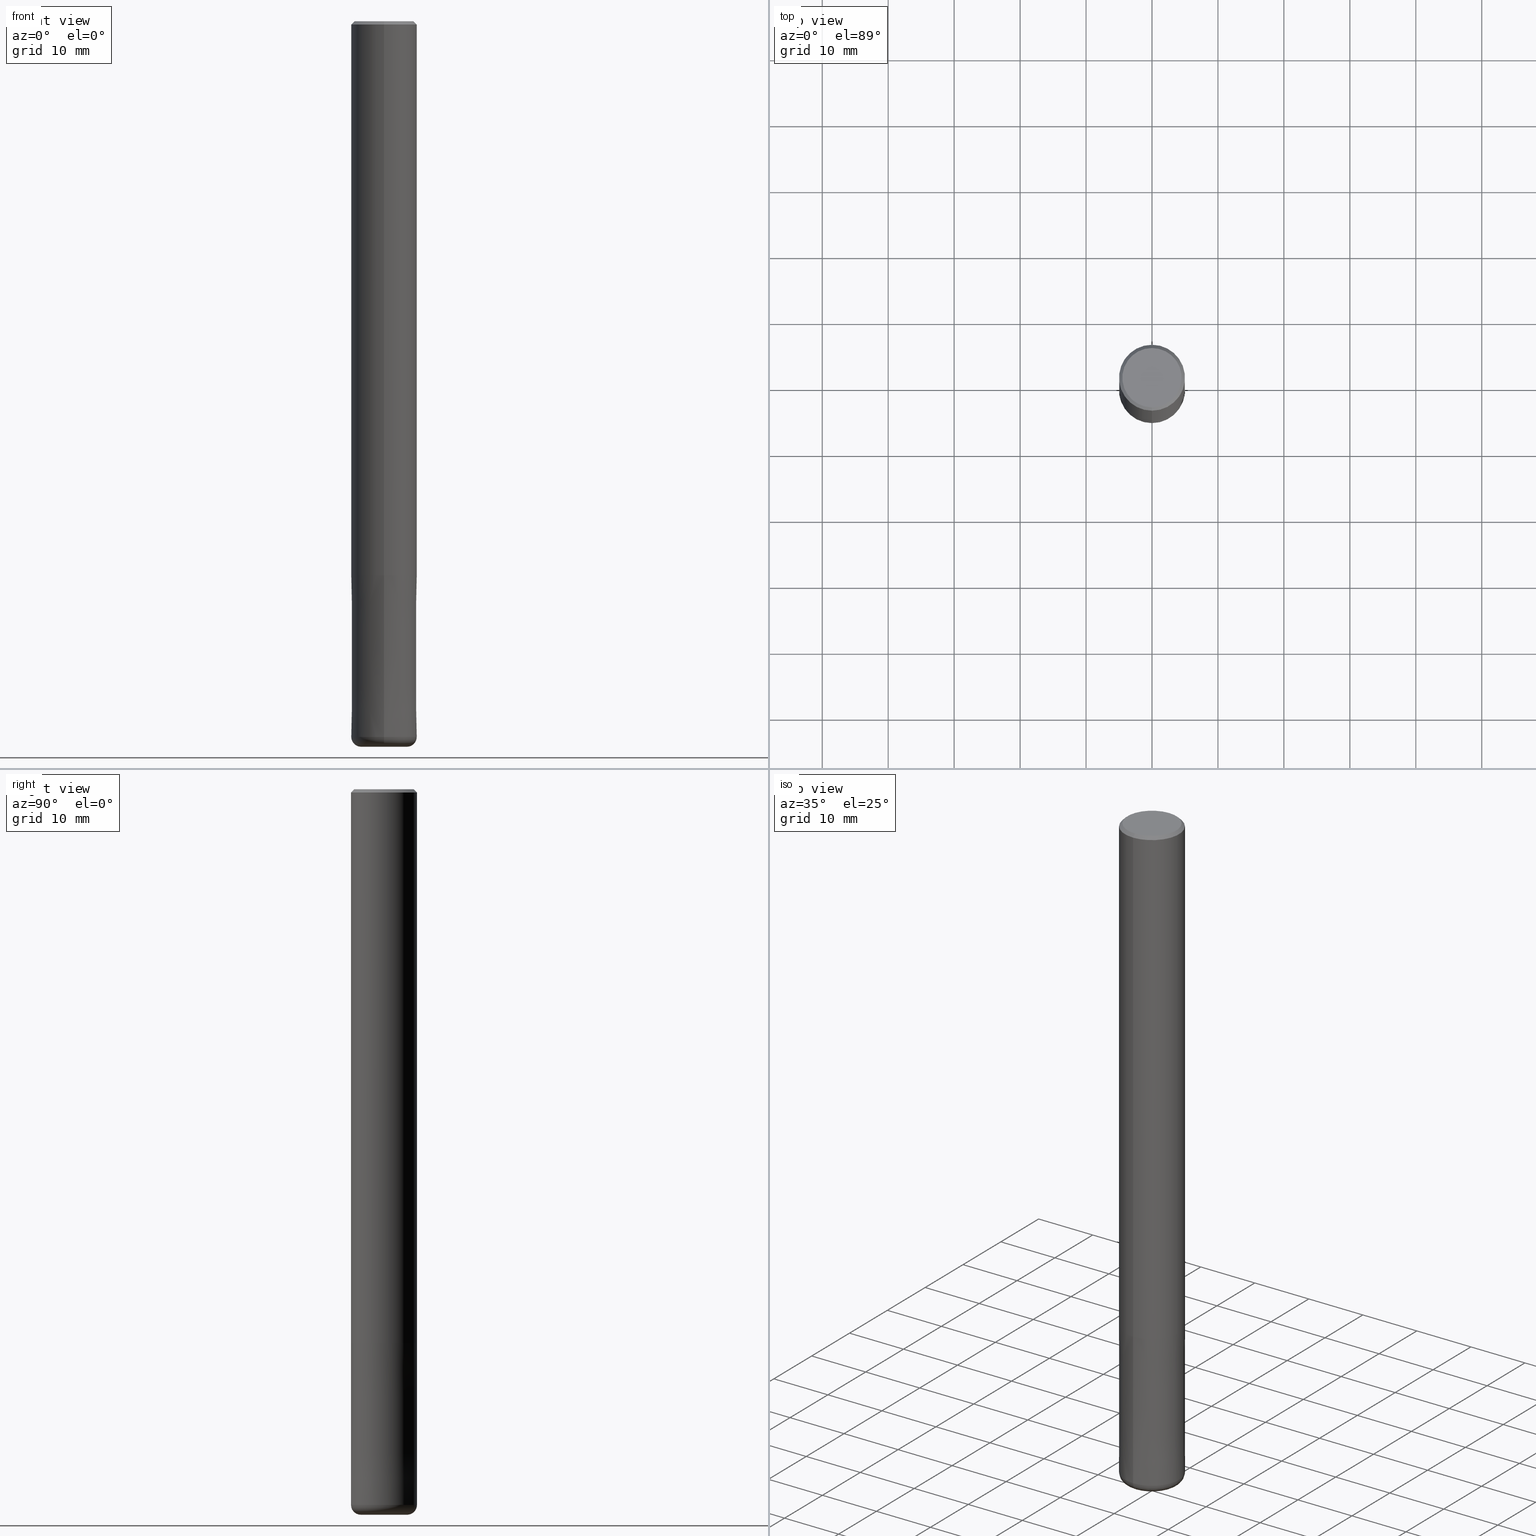
[diagram: canonical four-view strip — front | top / right | iso, engineering-drawing reading convention]
A machine part, canonical four-view strip (front | top / right | iso — engineering-drawing reading convention). The complete STEP part file that produces these views, byte-faithful:
ISO-10303-21;
HEADER;
FILE_DESCRIPTION(('no description'),'unknown implementation level');
FILE_NAME('CNRS4100-15-26-Huellk.stp','  ',('CIMSOURCE GmbH'),('CADClick - KiM GmbH - www.kimweb.de'),'unknown preprocess','ACIS','unknown authorization');
FILE_SCHEMA(('automotive_design'));
ENDSEC;
DATA;
#1=MECHANICAL_DESIGN_GEOMETRIC_PRESENTATION_REPRESENTATION(' ',(#10,#11,#12,#13,#14,#15,#16,#17,#18,#19,#20,#21,#22,#23,#24,#25,#26,#27,#28,#29,#30,#31,#32,#33,#34,#35,#36,#37,#38,#39,#40,#41,#42,#43,#44,#45,#46,#47,#48,#49,#50,#51,#52,#53),#6);
#2=PRODUCT_DEFINITION_CONTEXT('',#54,'design');
#3=APPLICATION_PROTOCOL_DEFINITION('INTERNATIONAL STANDARD','automotive_design',1994,#54);
#4=PRODUCT_CATEGORY_RELATIONSHIP('NONE','NONE',#55,#56);
#5=SHAPE_DEFINITION_REPRESENTATION(#57,#58);
#6= (GEOMETRIC_REPRESENTATION_CONTEXT(3)GLOBAL_UNCERTAINTY_ASSIGNED_CONTEXT((#61))GLOBAL_UNIT_ASSIGNED_CONTEXT((#63,#64,#65))REPRESENTATION_CONTEXT('NONE','WORKSPACE'));
#10=STYLED_ITEM('',(#67),#68);
#11=STYLED_ITEM('',(#69),#70);
#12=STYLED_ITEM('',(#71),#72);
#13=STYLED_ITEM('',(#73),#74);
#14=STYLED_ITEM('',(#75),#76);
#15=STYLED_ITEM('',(#77),#78);
#16=STYLED_ITEM('',(#79),#80);
#17=STYLED_ITEM('',(#81),#82);
#18=STYLED_ITEM('',(#83),#84);
#19=STYLED_ITEM('',(#85),#86);
#20=STYLED_ITEM('',(#87),#88);
#21=STYLED_ITEM('',(#89),#90);
#22=STYLED_ITEM('',(#91),#92);
#23=STYLED_ITEM('',(#93),#94);
#24=STYLED_ITEM('',(#95),#96);
#25=STYLED_ITEM('',(#97),#98);
#26=STYLED_ITEM('',(#99),#100);
#27=STYLED_ITEM('',(#101),#102);
#28=STYLED_ITEM('',(#103),#104);
#29=STYLED_ITEM('',(#105),#106);
#30=STYLED_ITEM('',(#107),#108);
#31=STYLED_ITEM('',(#109),#110);
#32=STYLED_ITEM('',(#111),#112);
#33=STYLED_ITEM('',(#113),#114);
#34=STYLED_ITEM('',(#115),#116);
#35=STYLED_ITEM('',(#117),#118);
#36=STYLED_ITEM('',(#119),#120);
#37=STYLED_ITEM('',(#121),#122);
#38=STYLED_ITEM('',(#123),#124);
#39=STYLED_ITEM('',(#125),#126);
#40=STYLED_ITEM('',(#127),#128);
#41=STYLED_ITEM('',(#129),#130);
#42=STYLED_ITEM('',(#131),#132);
#43=STYLED_ITEM('',(#133),#134);
#44=STYLED_ITEM('',(#135),#136);
#45=STYLED_ITEM('',(#137),#138);
#46=STYLED_ITEM('',(#139),#140);
#47=STYLED_ITEM('',(#141),#142);
#48=STYLED_ITEM('',(#143),#144);
#49=STYLED_ITEM('',(#145),#146);
#50=STYLED_ITEM('',(#147),#148);
#51=STYLED_ITEM('',(#149),#150);
#52=STYLED_ITEM('',(#151),#152);
#53=STYLED_ITEM('',(#153),#154);
#54=APPLICATION_CONTEXT(' ');
#55=PRODUCT_CATEGORY('part','NONE');
#56=PRODUCT_RELATED_PRODUCT_CATEGORY('detail',' ',(#155));
#57=PRODUCT_DEFINITION_SHAPE('NONE','NONE',#156);
#58=ADVANCED_BREP_SHAPE_REPRESENTATION('1',(#82,#157),#6);
#61=UNCERTAINTY_MEASURE_WITH_UNIT(LENGTH_MEASURE(1.0E-006),#63,'','');
#63= (CONVERSION_BASED_UNIT('MILLIMETRE',#160)LENGTH_UNIT()NAMED_UNIT(#163));
#64= (NAMED_UNIT(#165)PLANE_ANGLE_UNIT()SI_UNIT($,.RADIAN.));
#65= (NAMED_UNIT(#165)SOLID_ANGLE_UNIT()SI_UNIT($,.STERADIAN.));
#67=PRESENTATION_STYLE_ASSIGNMENT((#171));
#68=ADVANCED_FACE('',(#172),#173,.T.);
#69=PRESENTATION_STYLE_ASSIGNMENT((#174));
#70=ADVANCED_FACE('',(#175,#176),#177,.T.);
#71=PRESENTATION_STYLE_ASSIGNMENT((#178));
#72=ADVANCED_FACE('',(#179),#180,.T.);
#73=PRESENTATION_STYLE_ASSIGNMENT((#181));
#74=EDGE_CURVE('',#138,#122,#182,.T.);
#75=PRESENTATION_STYLE_ASSIGNMENT((#183));
#76=VERTEX_POINT('',#184);
#77=PRESENTATION_STYLE_ASSIGNMENT((#185));
#78=VERTEX_POINT('',#186);
#79=PRESENTATION_STYLE_ASSIGNMENT((#187));
#80=EDGE_CURVE('',#118,#124,#188,.T.);
#81=PRESENTATION_STYLE_ASSIGNMENT((#189));
#82=MANIFOLD_SOLID_BREP('1',#190);
#83=PRESENTATION_STYLE_ASSIGNMENT((#191));
#84=ADVANCED_FACE('',(#192),#193,.T.);
#85=PRESENTATION_STYLE_ASSIGNMENT((#194));
#86=ADVANCED_FACE('',(#195),#196,.T.);
#87=PRESENTATION_STYLE_ASSIGNMENT((#197));
#88=ADVANCED_FACE('',(#198),#199,.T.);
#89=PRESENTATION_STYLE_ASSIGNMENT((#200));
#90=VERTEX_POINT('',#201);
#91=PRESENTATION_STYLE_ASSIGNMENT((#202));
#92=EDGE_CURVE('',#90,#114,#203,.T.);
#93=PRESENTATION_STYLE_ASSIGNMENT((#204));
#94=ADVANCED_FACE('',(#205),#206,.T.);
#95=PRESENTATION_STYLE_ASSIGNMENT((#207));
#96=EDGE_CURVE('',#122,#114,#208,.T.);
#97=PRESENTATION_STYLE_ASSIGNMENT((#209));
#98=ADVANCED_FACE('',(#210),#211,.T.);
#99=PRESENTATION_STYLE_ASSIGNMENT((#212));
#100=ADVANCED_FACE('',(#213),#214,.T.);
#101=PRESENTATION_STYLE_ASSIGNMENT((#215));
#102=EDGE_CURVE('',#122,#124,#216,.T.);
#103=PRESENTATION_STYLE_ASSIGNMENT((#217));
#104=ADVANCED_FACE('',(#218),#219,.T.);
#105=PRESENTATION_STYLE_ASSIGNMENT((#220));
#106=VERTEX_POINT('',#221);
#107=PRESENTATION_STYLE_ASSIGNMENT((#222));
#108=EDGE_CURVE('',#114,#90,#223,.T.);
#109=PRESENTATION_STYLE_ASSIGNMENT((#224));
#110=EDGE_CURVE('',#106,#146,#225,.T.);
#111=PRESENTATION_STYLE_ASSIGNMENT((#226));
#112=EDGE_CURVE('',#118,#138,#227,.T.);
#113=PRESENTATION_STYLE_ASSIGNMENT((#228));
#114=VERTEX_POINT('',#229);
#115=PRESENTATION_STYLE_ASSIGNMENT((#230));
#116=EDGE_CURVE('',#146,#120,#231,.T.);
#117=PRESENTATION_STYLE_ASSIGNMENT((#232));
#118=VERTEX_POINT('',#233);
#119=PRESENTATION_STYLE_ASSIGNMENT((#234));
#120=VERTEX_POINT('',#235);
#121=PRESENTATION_STYLE_ASSIGNMENT((#236));
#122=VERTEX_POINT('',#237);
#123=PRESENTATION_STYLE_ASSIGNMENT((#238));
#124=VERTEX_POINT('',#239);
#125=PRESENTATION_STYLE_ASSIGNMENT((#240));
#126=EDGE_CURVE('',#78,#106,#241,.T.);
#127=PRESENTATION_STYLE_ASSIGNMENT((#242));
#128=EDGE_CURVE('',#140,#76,#243,.T.);
#129=PRESENTATION_STYLE_ASSIGNMENT((#244));
#130=EDGE_CURVE('',#122,#138,#245,.T.);
#131=PRESENTATION_STYLE_ASSIGNMENT((#246));
#132=EDGE_CURVE('',#120,#140,#247,.T.);
#133=PRESENTATION_STYLE_ASSIGNMENT((#248));
#134=EDGE_CURVE('',#106,#78,#249,.T.);
#135=PRESENTATION_STYLE_ASSIGNMENT((#250));
#136=EDGE_CURVE('',#76,#146,#251,.T.);
#137=PRESENTATION_STYLE_ASSIGNMENT((#252));
#138=VERTEX_POINT('',#253);
#139=PRESENTATION_STYLE_ASSIGNMENT((#254));
#140=VERTEX_POINT('',#255);
#141=PRESENTATION_STYLE_ASSIGNMENT((#256));
#142=EDGE_CURVE('',#146,#76,#257,.T.);
#143=PRESENTATION_STYLE_ASSIGNMENT((#258));
#144=ADVANCED_FACE('',(#259),#260,.T.);
#145=PRESENTATION_STYLE_ASSIGNMENT((#261));
#146=VERTEX_POINT('',#262);
#147=PRESENTATION_STYLE_ASSIGNMENT((#263));
#148=EDGE_CURVE('',#140,#120,#264,.T.);
#149=PRESENTATION_STYLE_ASSIGNMENT((#265));
#150=EDGE_CURVE('',#124,#118,#266,.T.);
#151=PRESENTATION_STYLE_ASSIGNMENT((#267));
#152=EDGE_CURVE('',#76,#78,#268,.T.);
#153=PRESENTATION_STYLE_ASSIGNMENT((#269));
#154=EDGE_CURVE('',#90,#138,#270,.T.);
#155=PRODUCT('1','1','PART-1-DESC',(#271));
#156=PRODUCT_DEFINITION('NONE','NONE',#272,#2);
#157=AXIS2_PLACEMENT_3D('',#273,#274,#275);
#160=LENGTH_MEASURE_WITH_UNIT(LENGTH_MEASURE(1.0),#276);
#163=DIMENSIONAL_EXPONENTS(1.0,0.0,0.0,0.0,0.0,0.0,0.0);
#165=DIMENSIONAL_EXPONENTS(0.0,0.0,0.0,0.0,0.0,0.0,0.0);
#171=SURFACE_STYLE_USAGE(.BOTH.,#277);
#172=FACE_OUTER_BOUND('',#278,.T.);
#173=CONICAL_SURFACE('',#279,4.99995,4.08163265302905E-006);
#174=SURFACE_STYLE_USAGE(.BOTH.,#280);
#175=FACE_OUTER_BOUND('',#281,.T.);
#176=FACE_BOUND('',#282,.T.);
#177=PLANE('',#283);
#178=SURFACE_STYLE_USAGE(.BOTH.,#284);
#179=FACE_OUTER_BOUND('',#285,.T.);
#180=CYLINDRICAL_SURFACE('',#286,5.0);
#181=CURVE_STYLE('',#287,POSITIVE_LENGTH_MEASURE(1.0E-006),#288);
#182=CIRCLE('',#289,5.0);
#183=POINT_STYLE(' ',#290,POSITIVE_LENGTH_MEASURE(1.0E-006),#291);
#184=CARTESIAN_POINT('',(0.0,5.0,-0.5));
#185=POINT_STYLE(' ',#292,POSITIVE_LENGTH_MEASURE(1.0E-006),#293);
#186=CARTESIAN_POINT('',(0.0,5.0,-84.0));
#187=CURVE_STYLE('',#294,POSITIVE_LENGTH_MEASURE(1.0E-006),#295);
#188=CIRCLE('',#296,4.9999);
#189=SURFACE_STYLE_USAGE(.BOTH.,#297);
#190=CLOSED_SHELL('',(#98,#68,#88,#94,#70,#104,#86,#72,#84,#144,#100));
#191=SURFACE_STYLE_USAGE(.BOTH.,#298);
#192=FACE_OUTER_BOUND('',#299,.T.);
#193=CONICAL_SURFACE('',#300,4.99995,4.08163265302905E-006);
#194=SURFACE_STYLE_USAGE(.BOTH.,#301);
#195=FACE_OUTER_BOUND('',#302,.T.);
#196=CONICAL_SURFACE('',#303,4.75,0.785398163397448);
#197=SURFACE_STYLE_USAGE(.BOTH.,#304);
#198=FACE_OUTER_BOUND('',#305,.T.);
#199=CYLINDRICAL_SURFACE('',#306,5.0);
#200=POINT_STYLE(' ',#307,POSITIVE_LENGTH_MEASURE(1.0E-006),#308);
#201=CARTESIAN_POINT('',(0.0,3.5,-110.0));
#202=CURVE_STYLE('',#309,POSITIVE_LENGTH_MEASURE(1.0E-006),#310);
#203=CIRCLE('',#311,3.5);
#204=SURFACE_STYLE_USAGE(.BOTH.,#312);
#205=FACE_OUTER_BOUND('',#313,.T.);
#206=CONICAL_SURFACE('',#314,4.75,0.785398163397448);
#207=CURVE_STYLE('',#315,POSITIVE_LENGTH_MEASURE(1.0E-006),#316);
#208=CIRCLE('',#317,1.5);
#209=SURFACE_STYLE_USAGE(.BOTH.,#318);
#210=FACE_OUTER_BOUND('',#319,.T.);
#211=TOROIDAL_SURFACE('',#320,3.5,1.5);
#212=SURFACE_STYLE_USAGE(.BOTH.,#321);
#213=FACE_OUTER_BOUND('',#322,.T.);
#214=PLANE('',#323);
#215=CURVE_STYLE('',#324,POSITIVE_LENGTH_MEASURE(1.0E-006),#325);
#216=LINE('',#326,#327);
#217=SURFACE_STYLE_USAGE(.BOTH.,#328);
#218=FACE_OUTER_BOUND('',#329,.T.);
#219=PLANE('',#330);
#220=POINT_STYLE(' ',#331,POSITIVE_LENGTH_MEASURE(1.0E-006),#332);
#221=CARTESIAN_POINT('',(6.12303176911189E-016,-5.0,-84.0));
#222=CURVE_STYLE('',#333,POSITIVE_LENGTH_MEASURE(1.0E-006),#334);
#223=CIRCLE('',#335,3.5);
#224=CURVE_STYLE('',#336,POSITIVE_LENGTH_MEASURE(1.0E-006),#337);
#225=LINE('',#338,#339);
#226=CURVE_STYLE('',#340,POSITIVE_LENGTH_MEASURE(1.0E-006),#341);
#227=LINE('',#342,#343);
#228=POINT_STYLE(' ',#344,POSITIVE_LENGTH_MEASURE(1.0E-006),#345);
#229=CARTESIAN_POINT('',(4.28612223837832E-016,-3.5,-110.0));
#230=CURVE_STYLE('',#346,POSITIVE_LENGTH_MEASURE(1.0E-006),#347);
#231=LINE('',#348,#349);
#232=POINT_STYLE(' ',#350,POSITIVE_LENGTH_MEASURE(1.0E-006),#351);
#233=CARTESIAN_POINT('',(0.0,4.9999,-84.0));
#234=POINT_STYLE(' ',#352,POSITIVE_LENGTH_MEASURE(1.0E-006),#353);
#235=CARTESIAN_POINT('',(5.5107285922007E-016,-4.5,0.0));
#236=POINT_STYLE(' ',#354,POSITIVE_LENGTH_MEASURE(1.0E-006),#355);
#237=CARTESIAN_POINT('',(6.12303176911189E-016,-5.0,-108.5));
#238=POINT_STYLE(' ',#356,POSITIVE_LENGTH_MEASURE(1.0E-006),#357);
#239=CARTESIAN_POINT('',(6.1229093084765E-016,-4.9999,-84.0));
#240=CURVE_STYLE('',#358,POSITIVE_LENGTH_MEASURE(1.0E-006),#359);
#241=CIRCLE('',#360,5.0);
#242=CURVE_STYLE('',#361,POSITIVE_LENGTH_MEASURE(1.0E-006),#362);
#243=LINE('',#363,#364);
#244=CURVE_STYLE('',#365,POSITIVE_LENGTH_MEASURE(1.0E-006),#366);
#245=CIRCLE('',#367,5.0);
#246=CURVE_STYLE('',#368,POSITIVE_LENGTH_MEASURE(1.0E-006),#369);
#247=CIRCLE('',#370,4.5);
#248=CURVE_STYLE('',#371,POSITIVE_LENGTH_MEASURE(1.0E-006),#372);
#249=CIRCLE('',#373,5.0);
#250=CURVE_STYLE('',#374,POSITIVE_LENGTH_MEASURE(1.0E-006),#375);
#251=CIRCLE('',#376,5.0);
#252=POINT_STYLE(' ',#377,POSITIVE_LENGTH_MEASURE(1.0E-006),#378);
#253=CARTESIAN_POINT('',(0.0,5.0,-108.5));
#254=POINT_STYLE(' ',#379,POSITIVE_LENGTH_MEASURE(1.0E-006),#380);
#255=CARTESIAN_POINT('',(0.0,4.5,0.0));
#256=CURVE_STYLE('',#381,POSITIVE_LENGTH_MEASURE(1.0E-006),#382);
#257=CIRCLE('',#383,5.0);
#258=SURFACE_STYLE_USAGE(.BOTH.,#384);
#259=FACE_OUTER_BOUND('',#385,.T.);
#260=TOROIDAL_SURFACE('',#386,3.5,1.5);
#261=POINT_STYLE(' ',#387,POSITIVE_LENGTH_MEASURE(1.0E-006),#388);
#262=CARTESIAN_POINT('',(6.12303176911189E-016,-5.0,-0.5));
#263=CURVE_STYLE('',#389,POSITIVE_LENGTH_MEASURE(1.0E-006),#390);
#264=CIRCLE('',#391,4.5);
#265=CURVE_STYLE('',#392,POSITIVE_LENGTH_MEASURE(1.0E-006),#393);
#266=CIRCLE('',#394,4.9999);
#267=CURVE_STYLE('',#395,POSITIVE_LENGTH_MEASURE(1.0E-006),#396);
#268=LINE('',#397,#398);
#269=CURVE_STYLE('',#399,POSITIVE_LENGTH_MEASURE(1.0E-006),#400);
#270=CIRCLE('',#401,1.5);
#271=PRODUCT_CONTEXT('',#54,'mechanical');
#272=PRODUCT_DEFINITION_FORMATION_WITH_SPECIFIED_SOURCE(' ','NONE',#155,.NOT_KNOWN.);
#273=CARTESIAN_POINT('',(0.0,0.0,0.0));
#274=DIRECTION('',(0.0,0.0,1.0));
#275=DIRECTION('',(1.0,0.0,0.0));
#276= (NAMED_UNIT(#163)LENGTH_UNIT()SI_UNIT(.MILLI.,.METRE.));
#277=SURFACE_SIDE_STYLE('',(#403));
#278=EDGE_LOOP('',(#404,#405,#406,#407));
#279=AXIS2_PLACEMENT_3D('',#408,#409,#410);
#280=SURFACE_SIDE_STYLE('',(#411));
#281=EDGE_LOOP('',(#412,#413));
#282=EDGE_LOOP('',(#414,#415));
#283=AXIS2_PLACEMENT_3D('',#416,#417,#418);
#284=SURFACE_SIDE_STYLE('',(#419));
#285=EDGE_LOOP('',(#420,#421,#422,#423));
#286=AXIS2_PLACEMENT_3D('',#424,#425,#426);
#287=DRAUGHTING_PRE_DEFINED_CURVE_FONT('continuous');
#288=COLOUR_RGB('',0.800000011920929,0.800000011920929,0.800000011920929);
#289=AXIS2_PLACEMENT_3D('',#427,#428,#429);
#290=PRE_DEFINED_MARKER('');
#291=COLOUR_RGB('',0.498039215803146,0.498039215803146,0.498039215803146);
#292=PRE_DEFINED_MARKER('');
#293=COLOUR_RGB('',0.498039215803146,0.498039215803146,0.498039215803146);
#294=DRAUGHTING_PRE_DEFINED_CURVE_FONT('continuous');
#295=COLOUR_RGB('',0.800000011920929,0.800000011920929,0.800000011920929);
#296=AXIS2_PLACEMENT_3D('',#430,#431,#432);
#297=SURFACE_SIDE_STYLE('',(#433));
#298=SURFACE_SIDE_STYLE('',(#434));
#299=EDGE_LOOP('',(#435,#436,#437,#438));
#300=AXIS2_PLACEMENT_3D('',#439,#440,#441);
#301=SURFACE_SIDE_STYLE('',(#442));
#302=EDGE_LOOP('',(#443,#444,#445,#446));
#303=AXIS2_PLACEMENT_3D('',#447,#448,#449);
#304=SURFACE_SIDE_STYLE('',(#450));
#305=EDGE_LOOP('',(#451,#452,#453,#454));
#306=AXIS2_PLACEMENT_3D('',#455,#456,#457);
#307=PRE_DEFINED_MARKER('');
#308=COLOUR_RGB('',0.800000011920929,0.800000011920929,0.800000011920929);
#309=DRAUGHTING_PRE_DEFINED_CURVE_FONT('continuous');
#310=COLOUR_RGB('',0.800000011920929,0.800000011920929,0.800000011920929);
#311=AXIS2_PLACEMENT_3D('',#458,#459,#460);
#312=SURFACE_SIDE_STYLE('',(#461));
#313=EDGE_LOOP('',(#462,#463,#464,#465));
#314=AXIS2_PLACEMENT_3D('',#466,#467,#468);
#315=DRAUGHTING_PRE_DEFINED_CURVE_FONT('continuous');
#316=COLOUR_RGB('',0.800000011920929,0.800000011920929,0.800000011920929);
#317=AXIS2_PLACEMENT_3D('',#469,#470,#471);
#318=SURFACE_SIDE_STYLE('',(#472));
#319=EDGE_LOOP('',(#473,#474,#475,#476));
#320=AXIS2_PLACEMENT_3D('',#477,#478,#479);
#321=SURFACE_SIDE_STYLE('',(#480));
#322=EDGE_LOOP('',(#481,#482));
#323=AXIS2_PLACEMENT_3D('',#483,#484,#485);
#324=DRAUGHTING_PRE_DEFINED_CURVE_FONT('continuous');
#325=COLOUR_RGB('',0.800000011920929,0.800000011920929,0.800000011920929);
#326=CARTESIAN_POINT('',(6.12297053879419E-016,-4.99995,-96.25));
#327=VECTOR('',#486,1.0);
#328=SURFACE_SIDE_STYLE('',(#487));
#329=EDGE_LOOP('',(#488,#489));
#330=AXIS2_PLACEMENT_3D('',#490,#491,#492);
#331=PRE_DEFINED_MARKER('');
#332=COLOUR_RGB('',0.498039215803146,0.498039215803146,0.498039215803146);
#333=DRAUGHTING_PRE_DEFINED_CURVE_FONT('continuous');
#334=COLOUR_RGB('',0.800000011920929,0.800000011920929,0.800000011920929);
#335=AXIS2_PLACEMENT_3D('',#493,#494,#495);
#336=DRAUGHTING_PRE_DEFINED_CURVE_FONT('continuous');
#337=COLOUR_RGB('',0.498039215803146,0.498039215803146,0.498039215803146);
#338=CARTESIAN_POINT('',(6.12303176911189E-016,-5.0,-42.25));
#339=VECTOR('',#496,1.0);
#340=DRAUGHTING_PRE_DEFINED_CURVE_FONT('continuous');
#341=COLOUR_RGB('',0.800000011920929,0.800000011920929,0.800000011920929);
#342=CARTESIAN_POINT('',(-6.12297053879419E-016,4.99995,-96.25));
#343=VECTOR('',#497,1.0);
#344=PRE_DEFINED_MARKER('');
#345=COLOUR_RGB('',0.800000011920929,0.800000011920929,0.800000011920929);
#346=DRAUGHTING_PRE_DEFINED_CURVE_FONT('continuous');
#347=COLOUR_RGB('',0.498039215803146,0.498039215803146,0.498039215803146);
#348=CARTESIAN_POINT('',(5.81688018065629E-016,-4.75,-0.25));
#349=VECTOR('',#498,1.0);
#350=PRE_DEFINED_MARKER('');
#351=COLOUR_RGB('',0.800000011920929,0.800000011920929,0.800000011920929);
#352=PRE_DEFINED_MARKER('');
#353=COLOUR_RGB('',0.498039215803146,0.498039215803146,0.498039215803146);
#354=PRE_DEFINED_MARKER('');
#355=COLOUR_RGB('',0.800000011920929,0.800000011920929,0.800000011920929);
#356=PRE_DEFINED_MARKER('');
#357=COLOUR_RGB('',0.800000011920929,0.800000011920929,0.800000011920929);
#358=DRAUGHTING_PRE_DEFINED_CURVE_FONT('continuous');
#359=COLOUR_RGB('',0.498039215803146,0.498039215803146,0.498039215803146);
#360=AXIS2_PLACEMENT_3D('',#499,#500,#501);
#361=DRAUGHTING_PRE_DEFINED_CURVE_FONT('continuous');
#362=COLOUR_RGB('',0.498039215803146,0.498039215803146,0.498039215803146);
#363=CARTESIAN_POINT('',(-5.81688018065629E-016,4.75,-0.25));
#364=VECTOR('',#502,1.0);
#365=DRAUGHTING_PRE_DEFINED_CURVE_FONT('continuous');
#366=COLOUR_RGB('',0.800000011920929,0.800000011920929,0.800000011920929);
#367=AXIS2_PLACEMENT_3D('',#503,#504,#505);
#368=DRAUGHTING_PRE_DEFINED_CURVE_FONT('continuous');
#369=COLOUR_RGB('',0.498039215803146,0.498039215803146,0.498039215803146);
#370=AXIS2_PLACEMENT_3D('',#506,#507,#508);
#371=DRAUGHTING_PRE_DEFINED_CURVE_FONT('continuous');
#372=COLOUR_RGB('',0.498039215803146,0.498039215803146,0.498039215803146);
#373=AXIS2_PLACEMENT_3D('',#509,#510,#511);
#374=DRAUGHTING_PRE_DEFINED_CURVE_FONT('continuous');
#375=COLOUR_RGB('',0.498039215803146,0.498039215803146,0.498039215803146);
#376=AXIS2_PLACEMENT_3D('',#512,#513,#514);
#377=PRE_DEFINED_MARKER('');
#378=COLOUR_RGB('',0.800000011920929,0.800000011920929,0.800000011920929);
#379=PRE_DEFINED_MARKER('');
#380=COLOUR_RGB('',0.498039215803146,0.498039215803146,0.498039215803146);
#381=DRAUGHTING_PRE_DEFINED_CURVE_FONT('continuous');
#382=COLOUR_RGB('',0.498039215803146,0.498039215803146,0.498039215803146);
#383=AXIS2_PLACEMENT_3D('',#515,#516,#517);
#384=SURFACE_SIDE_STYLE('',(#518));
#385=EDGE_LOOP('',(#519,#520,#521,#522));
#386=AXIS2_PLACEMENT_3D('',#523,#524,#525);
#387=PRE_DEFINED_MARKER('');
#388=COLOUR_RGB('',0.498039215803146,0.498039215803146,0.498039215803146);
#389=DRAUGHTING_PRE_DEFINED_CURVE_FONT('continuous');
#390=COLOUR_RGB('',0.498039215803146,0.498039215803146,0.498039215803146);
#391=AXIS2_PLACEMENT_3D('',#526,#527,#528);
#392=DRAUGHTING_PRE_DEFINED_CURVE_FONT('continuous');
#393=COLOUR_RGB('',0.800000011920929,0.800000011920929,0.800000011920929);
#394=AXIS2_PLACEMENT_3D('',#529,#530,#531);
#395=DRAUGHTING_PRE_DEFINED_CURVE_FONT('continuous');
#396=COLOUR_RGB('',0.498039215803146,0.498039215803146,0.498039215803146);
#397=CARTESIAN_POINT('',(-6.12303176911189E-016,5.0,-42.25));
#398=VECTOR('',#532,1.0);
#399=DRAUGHTING_PRE_DEFINED_CURVE_FONT('continuous');
#400=COLOUR_RGB('',0.800000011920929,0.800000011920929,0.800000011920929);
#401=AXIS2_PLACEMENT_3D('',#533,#534,#535);
#403=SURFACE_STYLE_FILL_AREA(#536);
#404=ORIENTED_EDGE('',*,*,#112,.F.);
#405=ORIENTED_EDGE('',*,*,#80,.T.);
#406=ORIENTED_EDGE('',*,*,#102,.F.);
#407=ORIENTED_EDGE('',*,*,#74,.F.);
#408=CARTESIAN_POINT('',(0.0,0.0,-96.25));
#409=DIRECTION('',(0.0,-0.0,-1.0));
#410=DIRECTION('',(0.0,1.0,0.0));
#411=SURFACE_STYLE_FILL_AREA(#537);
#412=ORIENTED_EDGE('',*,*,#126,.T.);
#413=ORIENTED_EDGE('',*,*,#134,.T.);
#414=ORIENTED_EDGE('',*,*,#80,.F.);
#415=ORIENTED_EDGE('',*,*,#150,.F.);
#416=CARTESIAN_POINT('',(0.0,2.5,-84.0));
#417=DIRECTION('',(0.0,0.0,-1.0));
#418=DIRECTION('',(0.0,1.0,0.0));
#419=SURFACE_STYLE_FILL_AREA(#538);
#420=ORIENTED_EDGE('',*,*,#152,.T.);
#421=ORIENTED_EDGE('',*,*,#134,.F.);
#422=ORIENTED_EDGE('',*,*,#110,.T.);
#423=ORIENTED_EDGE('',*,*,#142,.T.);
#424=CARTESIAN_POINT('',(0.0,0.0,-42.25));
#425=DIRECTION('',(-0.0,-0.0,1.0));
#426=DIRECTION('',(0.0,1.0,0.0));
#427=CARTESIAN_POINT('',(0.0,0.0,-108.5));
#428=DIRECTION('',(0.0,0.0,-1.0));
#429=DIRECTION('',(0.0,1.0,0.0));
#430=CARTESIAN_POINT('',(0.0,0.0,-84.0));
#431=DIRECTION('',(0.0,0.0,-1.0));
#432=DIRECTION('',(0.0,1.0,0.0));
#433=SURFACE_STYLE_FILL_AREA(#539);
#434=SURFACE_STYLE_FILL_AREA(#540);
#435=ORIENTED_EDGE('',*,*,#112,.T.);
#436=ORIENTED_EDGE('',*,*,#130,.F.);
#437=ORIENTED_EDGE('',*,*,#102,.T.);
#438=ORIENTED_EDGE('',*,*,#150,.T.);
#439=CARTESIAN_POINT('',(0.0,0.0,-96.25));
#440=DIRECTION('',(0.0,-0.0,-1.0));
#441=DIRECTION('',(0.0,1.0,0.0));
#442=SURFACE_STYLE_FILL_AREA(#541);
#443=ORIENTED_EDGE('',*,*,#128,.T.);
#444=ORIENTED_EDGE('',*,*,#142,.F.);
#445=ORIENTED_EDGE('',*,*,#116,.T.);
#446=ORIENTED_EDGE('',*,*,#132,.T.);
#447=CARTESIAN_POINT('',(0.0,0.0,-0.25));
#448=DIRECTION('',(0.0,-0.0,-1.0));
#449=DIRECTION('',(0.0,1.0,0.0));
#450=SURFACE_STYLE_FILL_AREA(#542);
#451=ORIENTED_EDGE('',*,*,#152,.F.);
#452=ORIENTED_EDGE('',*,*,#136,.T.);
#453=ORIENTED_EDGE('',*,*,#110,.F.);
#454=ORIENTED_EDGE('',*,*,#126,.F.);
#455=CARTESIAN_POINT('',(0.0,0.0,-42.25));
#456=DIRECTION('',(-0.0,-0.0,1.0));
#457=DIRECTION('',(0.0,1.0,0.0));
#458=CARTESIAN_POINT('',(0.0,0.0,-110.0));
#459=DIRECTION('',(0.0,0.0,-1.0));
#460=DIRECTION('',(0.0,1.0,0.0));
#461=SURFACE_STYLE_FILL_AREA(#543);
#462=ORIENTED_EDGE('',*,*,#128,.F.);
#463=ORIENTED_EDGE('',*,*,#148,.T.);
#464=ORIENTED_EDGE('',*,*,#116,.F.);
#465=ORIENTED_EDGE('',*,*,#136,.F.);
#466=CARTESIAN_POINT('',(0.0,0.0,-0.25));
#467=DIRECTION('',(0.0,-0.0,-1.0));
#468=DIRECTION('',(0.0,1.0,0.0));
#469=CARTESIAN_POINT('',(4.28612223837832E-016,-3.5,-108.5));
#470=DIRECTION('',(1.0,1.22460635382238E-016,0.0));
#471=DIRECTION('',(1.22460635382238E-016,-1.0,-0.0));
#472=SURFACE_STYLE_FILL_AREA(#544);
#473=ORIENTED_EDGE('',*,*,#96,.F.);
#474=ORIENTED_EDGE('',*,*,#130,.T.);
#475=ORIENTED_EDGE('',*,*,#154,.F.);
#476=ORIENTED_EDGE('',*,*,#108,.F.);
#477=CARTESIAN_POINT('',(0.0,0.0,-108.5));
#478=DIRECTION('',(0.0,0.0,-1.0));
#479=DIRECTION('',(0.0,-1.0,0.0));
#480=SURFACE_STYLE_FILL_AREA(#545);
#481=ORIENTED_EDGE('',*,*,#92,.T.);
#482=ORIENTED_EDGE('',*,*,#108,.T.);
#483=CARTESIAN_POINT('',(0.0,1.75,-110.0));
#484=DIRECTION('',(0.0,0.0,-1.0));
#485=DIRECTION('',(0.0,1.0,0.0));
#486=DIRECTION('',(-4.99839328085438E-022,4.08163265301771E-006,0.99999999999167));
#487=SURFACE_STYLE_FILL_AREA(#546);
#488=ORIENTED_EDGE('',*,*,#148,.F.);
#489=ORIENTED_EDGE('',*,*,#132,.F.);
#490=CARTESIAN_POINT('',(0.0,2.25,0.0));
#491=DIRECTION('',(-0.0,0.0,1.0));
#492=DIRECTION('',(0.0,-1.0,0.0));
#493=CARTESIAN_POINT('',(0.0,0.0,-110.0));
#494=DIRECTION('',(0.0,0.0,-1.0));
#495=DIRECTION('',(0.0,1.0,0.0));
#496=DIRECTION('',(-0.0,-0.0,1.0));
#497=DIRECTION('',(-4.99839328085438E-022,4.08163265301771E-006,-0.99999999999167));
#498=DIRECTION('',(-8.65927457071936E-017,0.707106781186548,0.707106781186548));
#499=CARTESIAN_POINT('',(0.0,0.0,-84.0));
#500=DIRECTION('',(0.0,0.0,-1.0));
#501=DIRECTION('',(0.0,1.0,0.0));
#502=DIRECTION('',(-8.65927457071936E-017,0.707106781186548,-0.707106781186548));
#503=CARTESIAN_POINT('',(0.0,0.0,-108.5));
#504=DIRECTION('',(0.0,0.0,-1.0));
#505=DIRECTION('',(0.0,1.0,0.0));
#506=CARTESIAN_POINT('',(0.0,0.0,0.0));
#507=DIRECTION('',(0.0,0.0,-1.0));
#508=DIRECTION('',(0.0,1.0,0.0));
#509=CARTESIAN_POINT('',(0.0,0.0,-84.0));
#510=DIRECTION('',(0.0,0.0,-1.0));
#511=DIRECTION('',(0.0,1.0,0.0));
#512=CARTESIAN_POINT('',(0.0,0.0,-0.5));
#513=DIRECTION('',(0.0,0.0,-1.0));
#514=DIRECTION('',(0.0,1.0,0.0));
#515=CARTESIAN_POINT('',(0.0,0.0,-0.5));
#516=DIRECTION('',(0.0,0.0,-1.0));
#517=DIRECTION('',(0.0,1.0,0.0));
#518=SURFACE_STYLE_FILL_AREA(#547);
#519=ORIENTED_EDGE('',*,*,#96,.T.);
#520=ORIENTED_EDGE('',*,*,#92,.F.);
#521=ORIENTED_EDGE('',*,*,#154,.T.);
#522=ORIENTED_EDGE('',*,*,#74,.T.);
#523=CARTESIAN_POINT('',(0.0,0.0,-108.5));
#524=DIRECTION('',(0.0,0.0,-1.0));
#525=DIRECTION('',(0.0,-1.0,0.0));
#526=CARTESIAN_POINT('',(0.0,0.0,0.0));
#527=DIRECTION('',(0.0,0.0,-1.0));
#528=DIRECTION('',(0.0,1.0,0.0));
#529=CARTESIAN_POINT('',(0.0,0.0,-84.0));
#530=DIRECTION('',(0.0,0.0,-1.0));
#531=DIRECTION('',(0.0,1.0,0.0));
#532=DIRECTION('',(0.0,0.0,-1.0));
#533=CARTESIAN_POINT('',(-4.28612223837832E-016,3.5,-108.5));
#534=DIRECTION('',(1.0,1.22460635382238E-016,0.0));
#535=DIRECTION('',(-1.22460635382238E-016,1.0,0.0));
#536=FILL_AREA_STYLE('',(#548));
#537=FILL_AREA_STYLE('',(#549));
#538=FILL_AREA_STYLE('',(#550));
#539=FILL_AREA_STYLE('',(#551));
#540=FILL_AREA_STYLE('',(#552));
#541=FILL_AREA_STYLE('',(#553));
#542=FILL_AREA_STYLE('',(#554));
#543=FILL_AREA_STYLE('',(#555));
#544=FILL_AREA_STYLE('',(#556));
#545=FILL_AREA_STYLE('',(#557));
#546=FILL_AREA_STYLE('',(#558));
#547=FILL_AREA_STYLE('',(#559));
#548=FILL_AREA_STYLE_COLOUR('',#560);
#549=FILL_AREA_STYLE_COLOUR('',#561);
#550=FILL_AREA_STYLE_COLOUR('',#562);
#551=FILL_AREA_STYLE_COLOUR('',#563);
#552=FILL_AREA_STYLE_COLOUR('',#564);
#553=FILL_AREA_STYLE_COLOUR('',#565);
#554=FILL_AREA_STYLE_COLOUR('',#566);
#555=FILL_AREA_STYLE_COLOUR('',#567);
#556=FILL_AREA_STYLE_COLOUR('',#568);
#557=FILL_AREA_STYLE_COLOUR('',#569);
#558=FILL_AREA_STYLE_COLOUR('',#570);
#559=FILL_AREA_STYLE_COLOUR('',#571);
#560=COLOUR_RGB('',0.800000011920929,0.800000011920929,0.800000011920929);
#561=COLOUR_RGB('',0.498039215803146,0.498039215803146,0.498039215803146);
#562=COLOUR_RGB('',0.498039215803146,0.498039215803146,0.498039215803146);
#563=COLOUR_RGB('',0.800000011920929,0.800000011920929,0.800000011920929);
#564=COLOUR_RGB('',0.800000011920929,0.800000011920929,0.800000011920929);
#565=COLOUR_RGB('',0.498039215803146,0.498039215803146,0.498039215803146);
#566=COLOUR_RGB('',0.498039215803146,0.498039215803146,0.498039215803146);
#567=COLOUR_RGB('',0.498039215803146,0.498039215803146,0.498039215803146);
#568=COLOUR_RGB('',0.800000011920929,0.800000011920929,0.800000011920929);
#569=COLOUR_RGB('',0.800000011920929,0.800000011920929,0.800000011920929);
#570=COLOUR_RGB('',0.498039215803146,0.498039215803146,0.498039215803146);
#571=COLOUR_RGB('',0.800000011920929,0.800000011920929,0.800000011920929);
#572=AXIS2_PLACEMENT_3D('PCS',#573,#574,#575);
#573=CARTESIAN_POINT('',(0.0,0.0,0.0));
#574=DIRECTION('',(0.0,0.0,1.0));
#575=DIRECTION('',(1.0,0.0,0.0));
#576=AXIS2_PLACEMENT_3D('CIP',#577,#578,#579);
#577=CARTESIAN_POINT('',(0.0,0.0,-110.0));
#578=DIRECTION('',(0.0,0.0,1.0));
#579=DIRECTION('',(1.0,0.0,0.0));
#580=AXIS2_PLACEMENT_3D('CRP',#581,#582,#583);
#581=CARTESIAN_POINT('',(-5.0,0.0,-110.0));
#582=DIRECTION('',(0.0,0.0,1.0));
#583=DIRECTION('',(1.0,0.0,0.0));
#584=AXIS2_PLACEMENT_3D('MCS',#585,#586,#587);
#585=CARTESIAN_POINT('',(0.0,0.0,-84.0));
#586=DIRECTION('',(0.0,0.0,1.0));
#587=DIRECTION('',(1.0,0.0,0.0));
#588=CONSTRUCTIVE_GEOMETRY_REPRESENTATION_RELATIONSHIP('coordinate systems',$,#58,#589);
#589=CONSTRUCTIVE_GEOMETRY_REPRESENTATION('coordinate systems',(#572,#576,#580,#584),#6);
ENDSEC;
END-ISO-10303-21;
